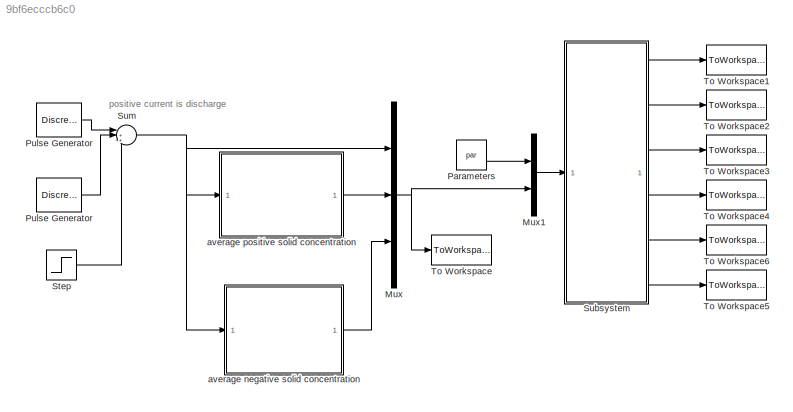
MODEL mdl_9bf6ecccb6c0
KIND model
CONFIG AbsTol = auto
CONFIG EnableMultiTasking = on
CONFIG FixedStep = st
CONFIG MaxStep = 0.5
CONFIG MinStep = auto
CONFIG RelTol = 1e-3
CONFIG SampleTimeConstraint = Unconstrained
CONFIG SolverName = ode3
CONFIG StartTime = 0
CONFIG StopTime = fin
BLOCK [Mux] Mux
  DisplayOption = bar
  Inputs = 3
BLOCK [Mux] Mux1
  DisplayOption = bar
  Inputs = 2
BLOCK [Constant] Parameters
  Value = par
  VectorParams1D = off
BLOCK [DiscretePulseGenerator] Pulse Generator
  Amplitude = -2*PA
  Commented = on
  Period = 100
  PhaseDelay = 140
  PulseType = Time based
  PulseWidth = 25
BLOCK [DiscretePulseGenerator] Pulse Generator 
  Amplitude = PA
  Commented = on
  Period = 100
  PhaseDelay = 40
  PulseType = Time based
  PulseWidth = 25
BLOCK [Step] Step
  After = 5
  SampleTime = 0
  Time = 0
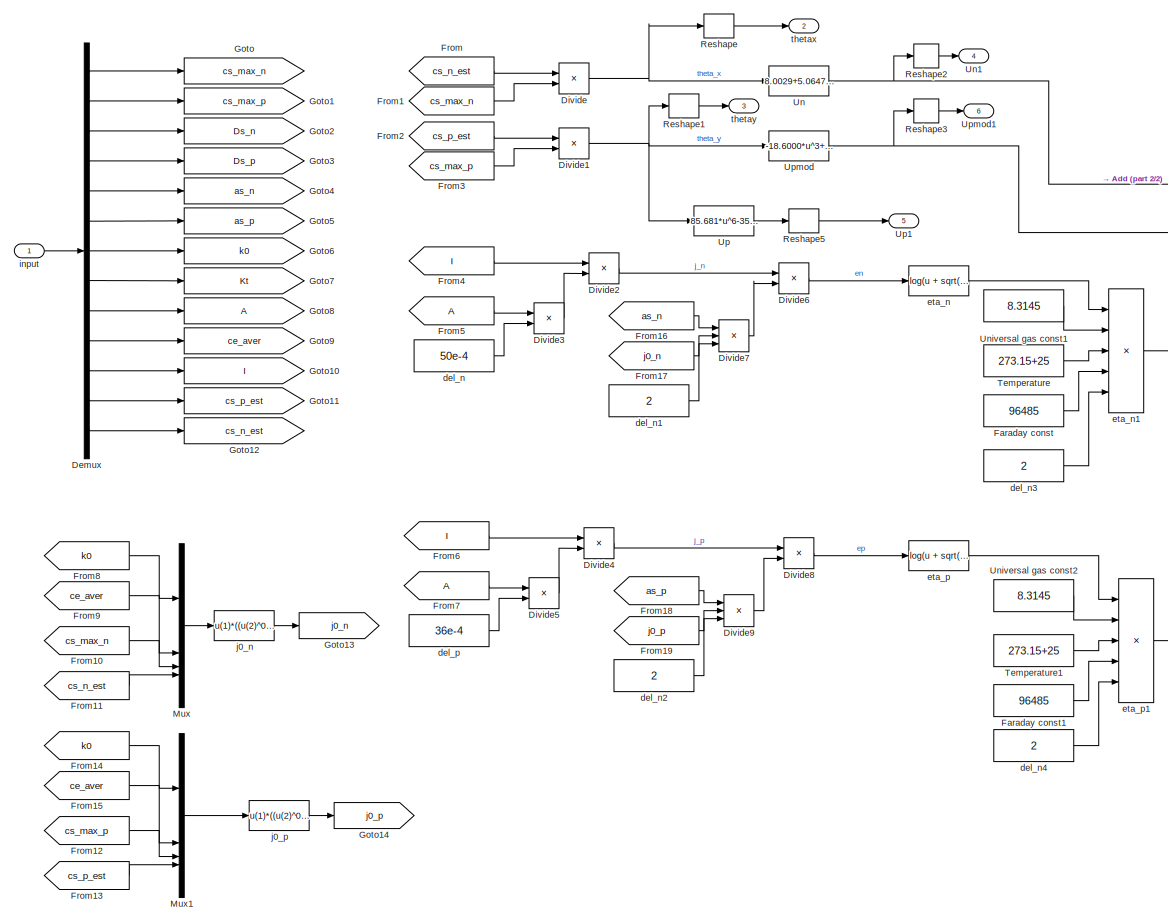
[diagram: Subsystem - part 1/2, center side, full height]
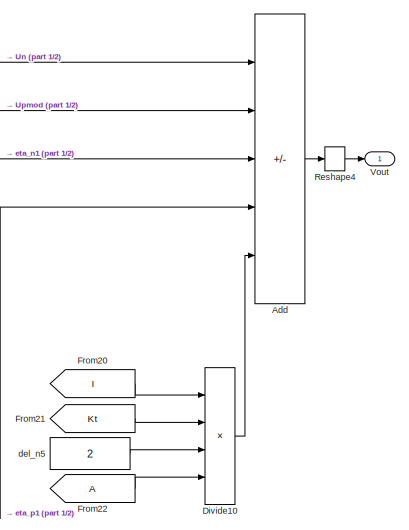
[diagram: Subsystem - part 2/2, middle right region]
BLOCK [SubSystem] Subsystem
BLOCK [Sum] Subsystem/Add
  IconShape = rectangular
  Inputs = -+-+-
  OutDataTypeStr = double
BLOCK [Demux] Subsystem/Demux
  Outputs = 13
BLOCK [Product] Subsystem/Divide
  Inputs = */
BLOCK [Product] Subsystem/Divide1
  Inputs = */
BLOCK [Product] Subsystem/Divide10
  Inputs = ***/
BLOCK [Product] Subsystem/Divide2
  Inputs = */
BLOCK [Product] Subsystem/Divide3
  Inputs = **
BLOCK [Product] Subsystem/Divide4
  Inputs = */
BLOCK [Product] Subsystem/Divide5
  Inputs = **
BLOCK [Product] Subsystem/Divide6
  Inputs = */
BLOCK [Product] Subsystem/Divide7
  Inputs = ***
BLOCK [Product] Subsystem/Divide8
  Inputs = */
BLOCK [Product] Subsystem/Divide9
  Inputs = ***
BLOCK [Constant] Subsystem/Faraday const
  Value = 96485
BLOCK [Constant] Subsystem/Faraday const1
  Value = 96485
BLOCK [From] Subsystem/From
  GotoTag = cs_n_est
BLOCK [From] Subsystem/From1
  GotoTag = cs_max_n
BLOCK [From] Subsystem/From10
  GotoTag = cs_max_n
BLOCK [From] Subsystem/From11
  GotoTag = cs_n_est
BLOCK [From] Subsystem/From12
  GotoTag = cs_max_p
BLOCK [From] Subsystem/From13
  GotoTag = cs_p_est
BLOCK [From] Subsystem/From14
  GotoTag = k0
BLOCK [From] Subsystem/From15
  GotoTag = ce_aver
BLOCK [From] Subsystem/From16
  GotoTag = as_n
BLOCK [From] Subsystem/From17
  GotoTag = j0_n
BLOCK [From] Subsystem/From18
  GotoTag = as_p
BLOCK [From] Subsystem/From19
  GotoTag = j0_p
BLOCK [From] Subsystem/From2
  GotoTag = cs_p_est
BLOCK [From] Subsystem/From20
  GotoTag = I
BLOCK [From] Subsystem/From21
  GotoTag = Kt
BLOCK [From] Subsystem/From22
BLOCK [From] Subsystem/From3
  GotoTag = cs_max_p
BLOCK [From] Subsystem/From4
  GotoTag = I
BLOCK [From] Subsystem/From5
BLOCK [From] Subsystem/From6
  GotoTag = I
BLOCK [From] Subsystem/From7
BLOCK [From] Subsystem/From8
  GotoTag = k0
BLOCK [From] Subsystem/From9
  GotoTag = ce_aver
BLOCK [Goto] Subsystem/Goto
  GotoTag = cs_max_n
BLOCK [Goto] Subsystem/Goto1
  GotoTag = cs_max_p
BLOCK [Goto] Subsystem/Goto10
  GotoTag = I
BLOCK [Goto] Subsystem/Goto11
  GotoTag = cs_p_est
BLOCK [Goto] Subsystem/Goto12
  GotoTag = cs_n_est
BLOCK [Goto] Subsystem/Goto13
  GotoTag = j0_n
BLOCK [Goto] Subsystem/Goto14
  GotoTag = j0_p
BLOCK [Goto] Subsystem/Goto2
  GotoTag = Ds_n
BLOCK [Goto] Subsystem/Goto3
  GotoTag = Ds_p
BLOCK [Goto] Subsystem/Goto4
  GotoTag = as_n
BLOCK [Goto] Subsystem/Goto5
  GotoTag = as_p
BLOCK [Goto] Subsystem/Goto6
  GotoTag = k0
BLOCK [Goto] Subsystem/Goto7
  GotoTag = Kt
BLOCK [Goto] Subsystem/Goto8
BLOCK [Goto] Subsystem/Goto9
  GotoTag = ce_aver
BLOCK [Mux] Subsystem/Mux
  DisplayOption = bar
BLOCK [Mux] Subsystem/Mux1
  DisplayOption = bar
BLOCK [Reshape] Subsystem/Reshape
BLOCK [Reshape] Subsystem/Reshape1
BLOCK [Reshape] Subsystem/Reshape2
BLOCK [Reshape] Subsystem/Reshape3
BLOCK [Reshape] Subsystem/Reshape4
BLOCK [Reshape] Subsystem/Reshape5
BLOCK [Constant] Subsystem/Temperature
  Value = 273.15+25
BLOCK [Constant] Subsystem/Temperature1
  Value = 273.15+25
BLOCK [Fcn] Subsystem/Un
  Expr = 8.0029+5.0647*u-12.578*u^0.5-8.6322e-4*u^(-1)+2.1765e-5*u^(3/2)-0.46016*exp(15.0*(0.06-u))-0.55364*exp(-2.4326*(u-0.92))
BLOCK [Outport] Subsystem/Un1
  Port = 4
BLOCK [Constant] Subsystem/Universal gas const1
  Value = 8.3145
  VectorParams1D = off
BLOCK [Constant] Subsystem/Universal gas const2
  Value = 8.3145
BLOCK [Fcn] Subsystem/Up
  Expr = 85.681*u^6-357.70*u^5+613.89*u^4-555.65*u^3+281.06*u^2-76.648*u+13.1983 -0.30987*exp(5.657*u^115)
BLOCK [Outport] Subsystem/Up1
  Port = 5
BLOCK [Fcn] Subsystem/Upmod
  Expr = -18.6000*u^3+   31.1854*u^2  -17.9895*u+    7.4810
BLOCK [Outport] Subsystem/Upmod1
  Port = 6
BLOCK [Outport] Subsystem/Vout
BLOCK [Constant] Subsystem/del_n
  Value = 50e-4
BLOCK [Constant] Subsystem/del_n1
  Value = 2
BLOCK [Constant] Subsystem/del_n2
  Value = 2
BLOCK [Constant] Subsystem/del_n3
  Value = 2
BLOCK [Constant] Subsystem/del_n4
  Value = 2
BLOCK [Constant] Subsystem/del_n5
  Value = 2
BLOCK [Constant] Subsystem/del_p
  Value = 36e-4
BLOCK [Fcn] Subsystem/eta_n
  Expr = log(u + sqrt(u^2 +1))
BLOCK [Product] Subsystem/eta_n1
  Inputs = ***/*
BLOCK [Fcn] Subsystem/eta_p
  Expr = log(u + sqrt(u^2 +1))
BLOCK [Product] Subsystem/eta_p1
  Inputs = ***/*
BLOCK [Inport] Subsystem/input
BLOCK [Fcn] Subsystem/j0_n
  Expr = u(1)*((u(2)^0.5)*((u(3)-u(4))^(0.5))*(u(4)^0.5))
BLOCK [Fcn] Subsystem/j0_p
  Expr = u(1)*((u(2)^0.5)*((u(3)-u(4))^(0.5))*(u(4)^0.5))
BLOCK [Outport] Subsystem/thetax
  Port = 2
BLOCK [Outport] Subsystem/thetay
  Port = 3
BLOCK [Sum] Sum
  Inputs = |+++
BLOCK [ToWorkspace] To Workspace
  MaxDataPoints = inf
  SampleTime = -1
  VariableName = vout
BLOCK [ToWorkspace] To Workspace1
  MaxDataPoints = inf
  SampleTime = -1
  VariableName = V
BLOCK [ToWorkspace] To Workspace2
  MaxDataPoints = inf
  SampleTime = -1
  VariableName = th_x
BLOCK [ToWorkspace] To Workspace3
  MaxDataPoints = inf
  SampleTime = -1
  VariableName = th_y
BLOCK [ToWorkspace] To Workspace4
  MaxDataPoints = inf
  SampleTime = -1
  VariableName = Un
BLOCK [ToWorkspace] To Workspace5
  MaxDataPoints = inf
  SampleTime = -1
  VariableName = Up_mod
BLOCK [ToWorkspace] To Workspace6
  MaxDataPoints = inf
  SampleTime = -1
  VariableName = Up
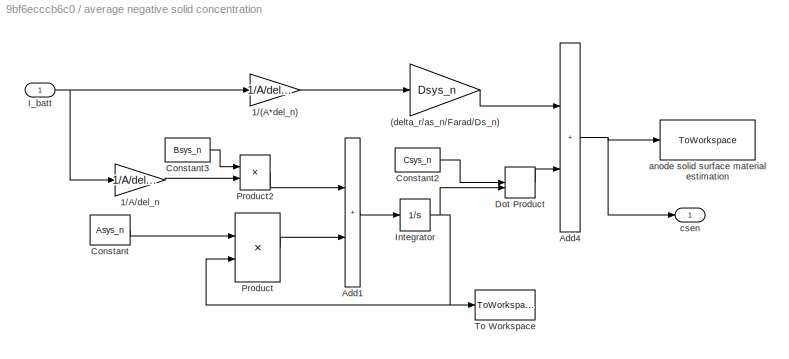
BLOCK [SubSystem] average negative solid concentration  
BLOCK [Gain] average negative solid concentration  /(delta_r//as_n//Farad//Ds_n)
  Gain = Dsys_n
BLOCK [Gain] average negative solid concentration  /1//(A*del_n)
  Gain = 1/A/del_n
BLOCK [Gain] average negative solid concentration  /1//A//del_n
  Gain = 1/A/del_n
BLOCK [Sum] average negative solid concentration  /Add1
  IconShape = rectangular
BLOCK [Sum] average negative solid concentration  /Add4
  IconShape = rectangular
BLOCK [Constant] average negative solid concentration  /Constant
  Value = Asys_n
BLOCK [Constant] average negative solid concentration  /Constant2
  Value = Csys_n
BLOCK [Constant] average negative solid concentration  /Constant3
  Value = Bsys_n
BLOCK [DotProduct] average negative solid concentration  /Dot Product
  OutDataTypeStr = Inherit: Inherit via internal rule
BLOCK [Inport] average negative solid concentration  /I_batt
BLOCK [Integrator] average negative solid concentration  /Integrator
  InitialCondition = cs_init_n
BLOCK [Product] average negative solid concentration  /Product
  Multiplication = Matrix(*)
  RndMeth = Zero
BLOCK [Product] average negative solid concentration  /Product2
  RndMeth = Zero
BLOCK [ToWorkspace] average negative solid concentration  /To Workspace
  MaxDataPoints = inf
  SampleTime = -1
  VariableName = csn
BLOCK [ToWorkspace] average negative solid concentration  /anode solid surface material estimation
  MaxDataPoints = inf
  SampleTime = -1
  VariableName = csen
BLOCK [Outport] average negative solid concentration  /csen
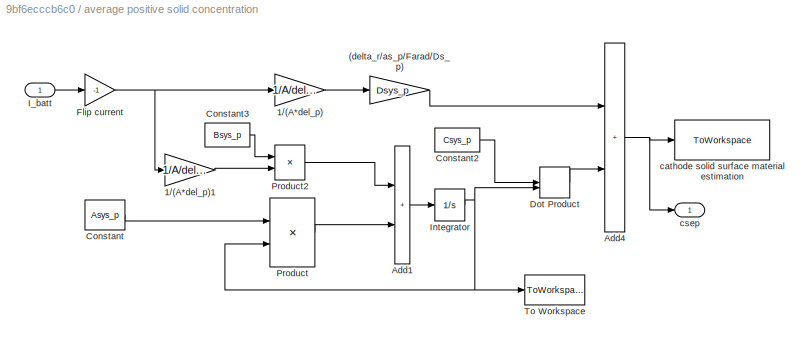
BLOCK [SubSystem] average positive solid concentration
BLOCK [Gain] average positive solid concentration/(delta_r//as_p//Farad//Ds_p)
  Gain = Dsys_p
BLOCK [Gain] average positive solid concentration/1//(A*del_p)
  Gain = 1/A/del_p
BLOCK [Gain] average positive solid concentration/1//(A*del_p)1
  Gain = 1/A/del_p
BLOCK [Sum] average positive solid concentration/Add1
  IconShape = rectangular
BLOCK [Sum] average positive solid concentration/Add4
  IconShape = rectangular
BLOCK [Constant] average positive solid concentration/Constant
  Value = Asys_p
BLOCK [Constant] average positive solid concentration/Constant2
  Value = Csys_p
BLOCK [Constant] average positive solid concentration/Constant3
  Value = Bsys_p
BLOCK [DotProduct] average positive solid concentration/Dot Product
  OutDataTypeStr = Inherit: Inherit via internal rule
BLOCK [Gain] average positive solid concentration/Flip current
  Gain = -1
BLOCK [Inport] average positive solid concentration/I_batt
BLOCK [Integrator] average positive solid concentration/Integrator
  InitialCondition = cs_init_p
  LimitOutput = on
BLOCK [Product] average positive solid concentration/Product
  Multiplication = Matrix(*)
  RndMeth = Zero
BLOCK [Product] average positive solid concentration/Product2
  RndMeth = Zero
BLOCK [ToWorkspace] average positive solid concentration/To Workspace
  MaxDataPoints = inf
  SampleTime = -1
  VariableName = csp
BLOCK [ToWorkspace] average positive solid concentration/cathode solid surface material estimation
  MaxDataPoints = inf
  SampleTime = -1
  VariableName = csep
BLOCK [Outport] average positive solid concentration/csep
ANNOTATION (root): positive current is discharge
LINE Mux1:1 -> Subsystem:1
NET Mux:1 -> Mux1:2, To Workspace:1
LINE Parameters:1 -> Mux1:1
LINE Pulse Generator :1 -> Sum:1
LINE Pulse Generator:1 -> Sum:2
LINE Step:1 -> Sum:3
LINE Subsystem/Add:1 -> Subsystem/Reshape4:1
LINE Subsystem/Demux:1 -> Subsystem/Goto:1
LINE Subsystem/Demux:10 -> Subsystem/Goto9:1
LINE Subsystem/Demux:11 -> Subsystem/Goto10:1
LINE Subsystem/Demux:12 -> Subsystem/Goto11:1
LINE Subsystem/Demux:13 -> Subsystem/Goto12:1
LINE Subsystem/Demux:2 -> Subsystem/Goto1:1
LINE Subsystem/Demux:3 -> Subsystem/Goto2:1
LINE Subsystem/Demux:4 -> Subsystem/Goto3:1
LINE Subsystem/Demux:5 -> Subsystem/Goto4:1
LINE Subsystem/Demux:6 -> Subsystem/Goto5:1
LINE Subsystem/Demux:7 -> Subsystem/Goto6:1
LINE Subsystem/Demux:8 -> Subsystem/Goto7:1
LINE Subsystem/Demux:9 -> Subsystem/Goto8:1
LINE Subsystem/Divide10:1 -> Subsystem/Add:5
NET Subsystem/Divide1:1 -> Subsystem/Reshape1:1, Subsystem/Up:1, Subsystem/Upmod:1
LINE Subsystem/Divide2:1 -> Subsystem/Divide6:1
LINE Subsystem/Divide3:1 -> Subsystem/Divide2:2
LINE Subsystem/Divide4:1 -> Subsystem/Divide8:1
LINE Subsystem/Divide5:1 -> Subsystem/Divide4:2
LINE Subsystem/Divide6:1 -> Subsystem/eta_n:1
LINE Subsystem/Divide7:1 -> Subsystem/Divide6:2
LINE Subsystem/Divide8:1 -> Subsystem/eta_p:1
LINE Subsystem/Divide9:1 -> Subsystem/Divide8:2
NET Subsystem/Divide:1 -> Subsystem/Reshape:1, Subsystem/Un:1
LINE Subsystem/Faraday const1:1 -> Subsystem/eta_p1:4
LINE Subsystem/Faraday const:1 -> Subsystem/eta_n1:4
LINE Subsystem/From10:1 -> Subsystem/Mux:3
LINE Subsystem/From11:1 -> Subsystem/Mux:4
LINE Subsystem/From12:1 -> Subsystem/Mux1:3
LINE Subsystem/From13:1 -> Subsystem/Mux1:4
LINE Subsystem/From14:1 -> Subsystem/Mux1:1
LINE Subsystem/From15:1 -> Subsystem/Mux1:2
LINE Subsystem/From16:1 -> Subsystem/Divide7:1
LINE Subsystem/From17:1 -> Subsystem/Divide7:2
LINE Subsystem/From18:1 -> Subsystem/Divide9:1
LINE Subsystem/From19:1 -> Subsystem/Divide9:2
LINE Subsystem/From1:1 -> Subsystem/Divide:2
LINE Subsystem/From20:1 -> Subsystem/Divide10:1
LINE Subsystem/From21:1 -> Subsystem/Divide10:2
LINE Subsystem/From22:1 -> Subsystem/Divide10:4
LINE Subsystem/From2:1 -> Subsystem/Divide1:1
LINE Subsystem/From3:1 -> Subsystem/Divide1:2
LINE Subsystem/From4:1 -> Subsystem/Divide2:1
LINE Subsystem/From5:1 -> Subsystem/Divide3:1
LINE Subsystem/From6:1 -> Subsystem/Divide4:1
LINE Subsystem/From7:1 -> Subsystem/Divide5:1
LINE Subsystem/From8:1 -> Subsystem/Mux:1
LINE Subsystem/From9:1 -> Subsystem/Mux:2
LINE Subsystem/From:1 -> Subsystem/Divide:1
LINE Subsystem/Mux1:1 -> Subsystem/j0_p:1
LINE Subsystem/Mux:1 -> Subsystem/j0_n:1
LINE Subsystem/Reshape1:1 -> Subsystem/thetay:1
LINE Subsystem/Reshape2:1 -> Subsystem/Un1:1
LINE Subsystem/Reshape3:1 -> Subsystem/Upmod1:1
LINE Subsystem/Reshape4:1 -> Subsystem/Vout:1
LINE Subsystem/Reshape5:1 -> Subsystem/Up1:1
LINE Subsystem/Reshape:1 -> Subsystem/thetax:1
LINE Subsystem/Temperature1:1 -> Subsystem/eta_p1:3
LINE Subsystem/Temperature:1 -> Subsystem/eta_n1:3
NET Subsystem/Un:1 -> Subsystem/Add:1, Subsystem/Reshape2:1
LINE Subsystem/Universal gas const1:1 -> Subsystem/eta_n1:2
LINE Subsystem/Universal gas const2:1 -> Subsystem/eta_p1:2
LINE Subsystem/Up:1 -> Subsystem/Reshape5:1
NET Subsystem/Upmod:1 -> Subsystem/Add:2, Subsystem/Reshape3:1
LINE Subsystem/del_n1:1 -> Subsystem/Divide7:3
LINE Subsystem/del_n2:1 -> Subsystem/Divide9:3
LINE Subsystem/del_n3:1 -> Subsystem/eta_n1:5
LINE Subsystem/del_n4:1 -> Subsystem/eta_p1:5
LINE Subsystem/del_n5:1 -> Subsystem/Divide10:3
LINE Subsystem/del_n:1 -> Subsystem/Divide3:2
LINE Subsystem/del_p:1 -> Subsystem/Divide5:2
LINE Subsystem/eta_n1:1 -> Subsystem/Add:3
LINE Subsystem/eta_n:1 -> Subsystem/eta_n1:1
LINE Subsystem/eta_p1:1 -> Subsystem/Add:4
LINE Subsystem/eta_p:1 -> Subsystem/eta_p1:1
LINE Subsystem/input:1 -> Subsystem/Demux:1
LINE Subsystem/j0_n:1 -> Subsystem/Goto13:1
LINE Subsystem/j0_p:1 -> Subsystem/Goto14:1
LINE Subsystem:1 -> To Workspace1:1
LINE Subsystem:2 -> To Workspace2:1
LINE Subsystem:3 -> To Workspace3:1
LINE Subsystem:4 -> To Workspace4:1
LINE Subsystem:5 -> To Workspace6:1
LINE Subsystem:6 -> To Workspace5:1
NET Sum:1 -> Mux:1, average negative solid concentration  :1, average positive solid concentration:1
LINE average negative solid concentration  /(delta_r//as_n//Farad//Ds_n):1 -> average negative solid concentration  /Add4:1
LINE average negative solid concentration  /1//(A*del_n):1 -> average negative solid concentration  /(delta_r//as_n//Farad//Ds_n):1
LINE average negative solid concentration  /1//A//del_n:1 -> average negative solid concentration  /Product2:2
LINE average negative solid concentration  /Add1:1 -> average negative solid concentration  /Integrator:1
NET average negative solid concentration  /Add4:1 -> average negative solid concentration  /anode solid surface material estimation:1, average negative solid concentration  /csen:1
LINE average negative solid concentration  /Constant2:1 -> average negative solid concentration  /Dot Product:1
LINE average negative solid concentration  /Constant3:1 -> average negative solid concentration  /Product2:1
LINE average negative solid concentration  /Constant:1 -> average negative solid concentration  /Product:1
LINE average negative solid concentration  /Dot Product:1 -> average negative solid concentration  /Add4:2
NET average negative solid concentration  /I_batt:1 -> average negative solid concentration  /1//(A*del_n):1, average negative solid concentration  /1//A//del_n:1
NET average negative solid concentration  /Integrator:1 -> average negative solid concentration  /Dot Product:2, average negative solid concentration  /Product:2, average negative solid concentration  /To Workspace:1
LINE average negative solid concentration  /Product2:1 -> average negative solid concentration  /Add1:1
LINE average negative solid concentration  /Product:1 -> average negative solid concentration  /Add1:2
LINE average negative solid concentration  :1 -> Mux:3
LINE average positive solid concentration/(delta_r//as_p//Farad//Ds_p):1 -> average positive solid concentration/Add4:1
LINE average positive solid concentration/1//(A*del_p)1:1 -> average positive solid concentration/Product2:2
LINE average positive solid concentration/1//(A*del_p):1 -> average positive solid concentration/(delta_r//as_p//Farad//Ds_p):1
LINE average positive solid concentration/Add1:1 -> average positive solid concentration/Integrator:1
NET average positive solid concentration/Add4:1 -> average positive solid concentration/cathode solid surface material estimation:1, average positive solid concentration/csep:1
LINE average positive solid concentration/Constant2:1 -> average positive solid concentration/Dot Product:1
LINE average positive solid concentration/Constant3:1 -> average positive solid concentration/Product2:1
LINE average positive solid concentration/Constant:1 -> average positive solid concentration/Product:1
LINE average positive solid concentration/Dot Product:1 -> average positive solid concentration/Add4:2
NET average positive solid concentration/Flip current:1 -> average positive solid concentration/1//(A*del_p)1:1, average positive solid concentration/1//(A*del_p):1
LINE average positive solid concentration/I_batt:1 -> average positive solid concentration/Flip current:1
NET average positive solid concentration/Integrator:1 -> average positive solid concentration/Dot Product:2, average positive solid concentration/Product:2, average positive solid concentration/To Workspace:1
LINE average positive solid concentration/Product2:1 -> average positive solid concentration/Add1:1
LINE average positive solid concentration/Product:1 -> average positive solid concentration/Add1:2
LINE average positive solid concentration:1 -> Mux:2
note: NET lines group one-source signal fan-out (src -> all destinations, sorted); 1:1 wires keep LINE
